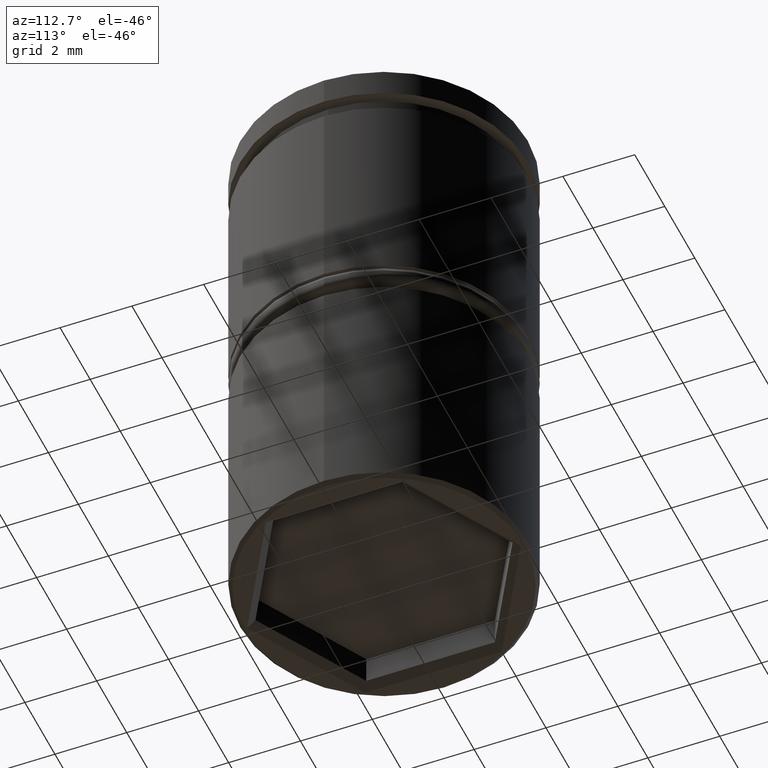
[diagram: clean part render]
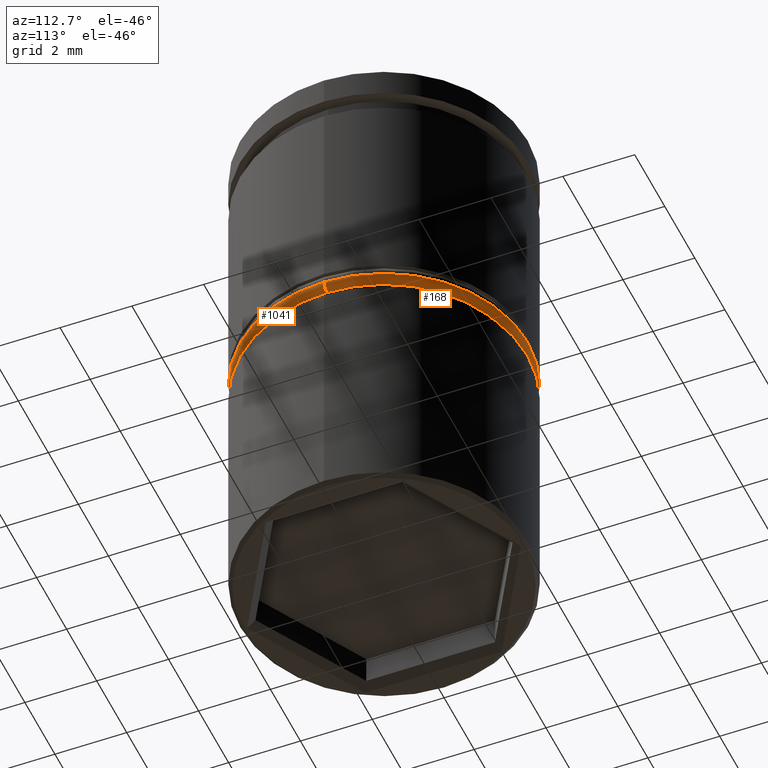
[diagram: same view with one multi-face feature highlighted, each face labeled with its STEP entity id]
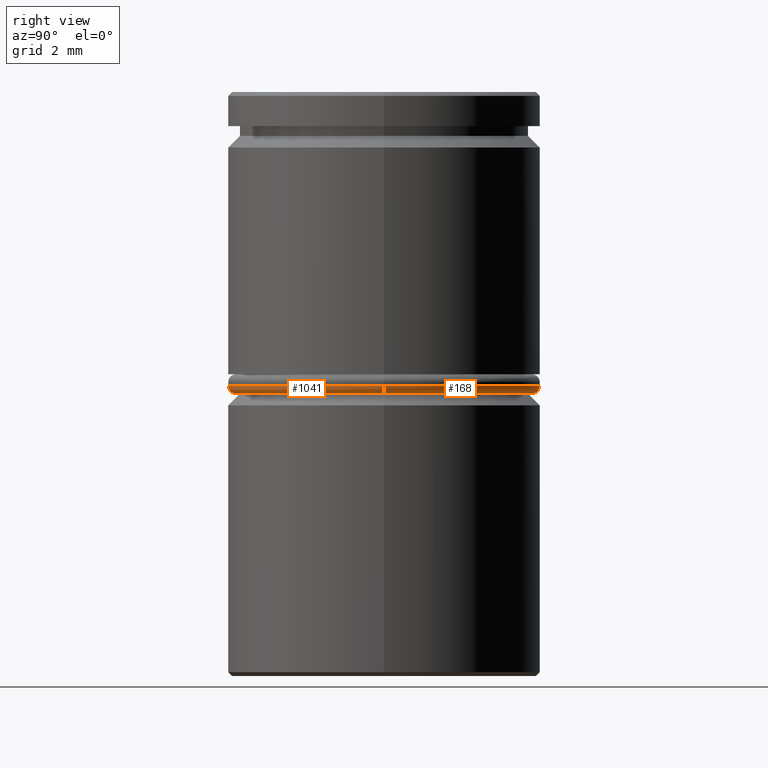
[diagram: same view with one multi-face feature highlighted, each face labeled with its STEP entity id]
A machine part, auxiliary view. The highlighted faces form ONE feature: a constant-radius fillet chain: 2 tangent blend faces with common blend radius 0.2 mm. The faces share edges in the B-rep.
A second angle (right view) of the same feature is appended — it is thin or edge-on in the first view.
Their STEP definitions:
[1] entity #168 (Torus):
#4 = DIRECTION ( 'NONE',  ( 0.000000000000000000, 0.000000000000000000, -1.000000000000000000 ) ) ;
#88 = ORIENTED_EDGE ( 'NONE', *, *, #820, .F. ) ;
#135 = CIRCLE ( 'NONE', #888, 3.799999999999999822 ) ;
#150 = VERTEX_POINT ( 'NONE', #382 ) ;
#168 = ADVANCED_FACE ( 'NONE', ( #1005 ), #1079, .T. ) ;
#186 = DIRECTION ( 'NONE',  ( 0.000000000000000000, -1.000000000000000000, 0.000000000000000000 ) ) ;
#188 = CARTESIAN_POINT ( 'NONE',  ( 3.799999999999999822, 0.000000000000000000, -7.750000000000000000 ) ) ;
#211 = ORIENTED_EDGE ( 'NONE', *, *, #639, .F. ) ;
#219 = VERTEX_POINT ( 'NONE', #188 ) ;
#227 = AXIS2_PLACEMENT_3D ( 'NONE', #1112, #666, #495 ) ;
#269 = AXIS2_PLACEMENT_3D ( 'NONE', #375, #292, #361 ) ;
#292 = DIRECTION ( 'NONE',  ( 0.000000000000000000, 0.000000000000000000, 1.000000000000000000 ) ) ;
#294 = EDGE_LOOP ( 'NONE', ( #88, #522, #211, #431 ) ) ;
#361 = DIRECTION ( 'NONE',  ( 1.000000000000000000, 0.000000000000000000, 0.000000000000000000 ) ) ;
#374 = DIRECTION ( 'NONE',  ( 1.000000000000000000, 0.000000000000000000, 0.000000000000000000 ) ) ;
#375 = CARTESIAN_POINT ( 'NONE',  ( 0.000000000000000000, 0.000000000000000000, -7.550000000000000711 ) ) ;
#382 = CARTESIAN_POINT ( 'NONE',  ( -4.000000000000000000, 4.898587196589412829E-16, -7.550000000000000711 ) ) ;
#431 = ORIENTED_EDGE ( 'NONE', *, *, #780, .F. ) ;
#456 = AXIS2_PLACEMENT_3D ( 'NONE', #1101, #652, #374 ) ;
#495 = DIRECTION ( 'NONE',  ( -1.000000000000000000, 1.224646799147350742E-16, 0.000000000000000000 ) ) ;
#522 = ORIENTED_EDGE ( 'NONE', *, *, #675, .T. ) ;
#595 = CARTESIAN_POINT ( 'NONE',  ( -3.799999999999999822, 4.776122516674677286E-16, -7.750000000000000000 ) ) ;
#639 = EDGE_CURVE ( 'NONE', #849, #150, #919, .T. ) ;
#652 = DIRECTION ( 'NONE',  ( 0.000000000000000000, 0.000000000000000000, 1.000000000000000000 ) ) ;
#666 = DIRECTION ( 'NONE',  ( 1.224646799147353207E-16, 1.000000000000000000, -0.000000000000000000 ) ) ;
#674 = CARTESIAN_POINT ( 'NONE',  ( 0.000000000000000000, 0.000000000000000000, -7.750000000000000000 ) ) ;
#675 = EDGE_CURVE ( 'NONE', #870, #150, #735, .T. ) ;
#735 = CIRCLE ( 'NONE', #227, 0.2000000000000000944 ) ;
#736 = CIRCLE ( 'NONE', #905, 0.1999999999999996503 ) ;
#744 = DIRECTION ( 'NONE',  ( 1.000000000000000000, 0.000000000000000000, 0.000000000000000000 ) ) ;
#780 = EDGE_CURVE ( 'NONE', #219, #849, #736, .T. ) ;
#820 = EDGE_CURVE ( 'NONE', #870, #219, #135, .T. ) ;
#849 = VERTEX_POINT ( 'NONE', #1111 ) ;
#870 = VERTEX_POINT ( 'NONE', #595 ) ;
#888 = AXIS2_PLACEMENT_3D ( 'NONE', #674, #1010, #744 ) ;
#905 = AXIS2_PLACEMENT_3D ( 'NONE', #1168, #186, #4 ) ;
#919 = CIRCLE ( 'NONE', #456, 4.000000000000000000 ) ;
#1005 = FACE_OUTER_BOUND ( 'NONE', #294, .T. ) ;
#1010 = DIRECTION ( 'NONE',  ( -0.000000000000000000, -0.000000000000000000, -1.000000000000000000 ) ) ;
#1079 = TOROIDAL_SURFACE ( 'NONE', #269, 3.799999999999999822, 0.2000000000000000111 ) ;
#1101 = CARTESIAN_POINT ( 'NONE',  ( 0.000000000000000000, 0.000000000000000000, -7.550000000000000711 ) ) ;
#1111 = CARTESIAN_POINT ( 'NONE',  ( 4.000000000000000000, 0.000000000000000000, -7.550000000000000711 ) ) ;
#1112 = CARTESIAN_POINT ( 'NONE',  ( -3.799999999999999822, 4.653657836759942730E-16, -7.550000000000000711 ) ) ;
#1168 = CARTESIAN_POINT ( 'NONE',  ( 3.799999999999999822, 0.000000000000000000, -7.550000000000000711 ) ) ;
[2] entity #1041 (Torus):
#4 = DIRECTION ( 'NONE',  ( 0.000000000000000000, 0.000000000000000000, -1.000000000000000000 ) ) ;
#36 = AXIS2_PLACEMENT_3D ( 'NONE', #741, #1104, #299 ) ;
#55 = TOROIDAL_SURFACE ( 'NONE', #1133, 3.799999999999999822, 0.2000000000000000111 ) ;
#63 = DIRECTION ( 'NONE',  ( 1.000000000000000000, 0.000000000000000000, 0.000000000000000000 ) ) ;
#118 = DIRECTION ( 'NONE',  ( 0.000000000000000000, 0.000000000000000000, 1.000000000000000000 ) ) ;
#150 = VERTEX_POINT ( 'NONE', #382 ) ;
#152 = CARTESIAN_POINT ( 'NONE',  ( 0.000000000000000000, 0.000000000000000000, -7.550000000000000711 ) ) ;
#186 = DIRECTION ( 'NONE',  ( 0.000000000000000000, -1.000000000000000000, 0.000000000000000000 ) ) ;
#188 = CARTESIAN_POINT ( 'NONE',  ( 3.799999999999999822, 0.000000000000000000, -7.750000000000000000 ) ) ;
#219 = VERTEX_POINT ( 'NONE', #188 ) ;
#227 = AXIS2_PLACEMENT_3D ( 'NONE', #1112, #666, #495 ) ;
#299 = DIRECTION ( 'NONE',  ( 1.000000000000000000, 0.000000000000000000, 0.000000000000000000 ) ) ;
#382 = CARTESIAN_POINT ( 'NONE',  ( -4.000000000000000000, 4.898587196589412829E-16, -7.550000000000000711 ) ) ;
#423 = CIRCLE ( 'NONE', #1078, 4.000000000000000000 ) ;
#495 = DIRECTION ( 'NONE',  ( -1.000000000000000000, 1.224646799147350742E-16, 0.000000000000000000 ) ) ;
#521 = ORIENTED_EDGE ( 'NONE', *, *, #780, .T. ) ;
#564 = CARTESIAN_POINT ( 'NONE',  ( 0.000000000000000000, 0.000000000000000000, -7.550000000000000711 ) ) ;
#595 = CARTESIAN_POINT ( 'NONE',  ( -3.799999999999999822, 4.776122516674677286E-16, -7.750000000000000000 ) ) ;
#596 = FACE_OUTER_BOUND ( 'NONE', #1057, .T. ) ;
#666 = DIRECTION ( 'NONE',  ( 1.224646799147353207E-16, 1.000000000000000000, -0.000000000000000000 ) ) ;
#675 = EDGE_CURVE ( 'NONE', #870, #150, #735, .T. ) ;
#735 = CIRCLE ( 'NONE', #227, 0.2000000000000000944 ) ;
#736 = CIRCLE ( 'NONE', #905, 0.1999999999999996503 ) ;
#741 = CARTESIAN_POINT ( 'NONE',  ( 0.000000000000000000, 0.000000000000000000, -7.750000000000000000 ) ) ;
#753 = ORIENTED_EDGE ( 'NONE', *, *, #1157, .F. ) ;
#780 = EDGE_CURVE ( 'NONE', #219, #849, #736, .T. ) ;
#829 = EDGE_CURVE ( 'NONE', #150, #849, #423, .T. ) ;
#838 = ORIENTED_EDGE ( 'NONE', *, *, #829, .F. ) ;
#849 = VERTEX_POINT ( 'NONE', #1111 ) ;
#870 = VERTEX_POINT ( 'NONE', #595 ) ;
#905 = AXIS2_PLACEMENT_3D ( 'NONE', #1168, #186, #4 ) ;
#975 = DIRECTION ( 'NONE',  ( 0.000000000000000000, 0.000000000000000000, 1.000000000000000000 ) ) ;
#1012 = ORIENTED_EDGE ( 'NONE', *, *, #675, .F. ) ;
#1030 = DIRECTION ( 'NONE',  ( 1.000000000000000000, 0.000000000000000000, 0.000000000000000000 ) ) ;
#1041 = ADVANCED_FACE ( 'NONE', ( #596 ), #55, .T. ) ;
#1055 = CIRCLE ( 'NONE', #36, 3.799999999999999822 ) ;
#1057 = EDGE_LOOP ( 'NONE', ( #1012, #753, #521, #838 ) ) ;
#1078 = AXIS2_PLACEMENT_3D ( 'NONE', #564, #118, #1030 ) ;
#1104 = DIRECTION ( 'NONE',  ( -0.000000000000000000, -0.000000000000000000, -1.000000000000000000 ) ) ;
#1111 = CARTESIAN_POINT ( 'NONE',  ( 4.000000000000000000, 0.000000000000000000, -7.550000000000000711 ) ) ;
#1112 = CARTESIAN_POINT ( 'NONE',  ( -3.799999999999999822, 4.653657836759942730E-16, -7.550000000000000711 ) ) ;
#1133 = AXIS2_PLACEMENT_3D ( 'NONE', #152, #975, #63 ) ;
#1157 = EDGE_CURVE ( 'NONE', #219, #870, #1055, .T. ) ;
#1168 = CARTESIAN_POINT ( 'NONE',  ( 3.799999999999999822, 0.000000000000000000, -7.550000000000000711 ) ) ;